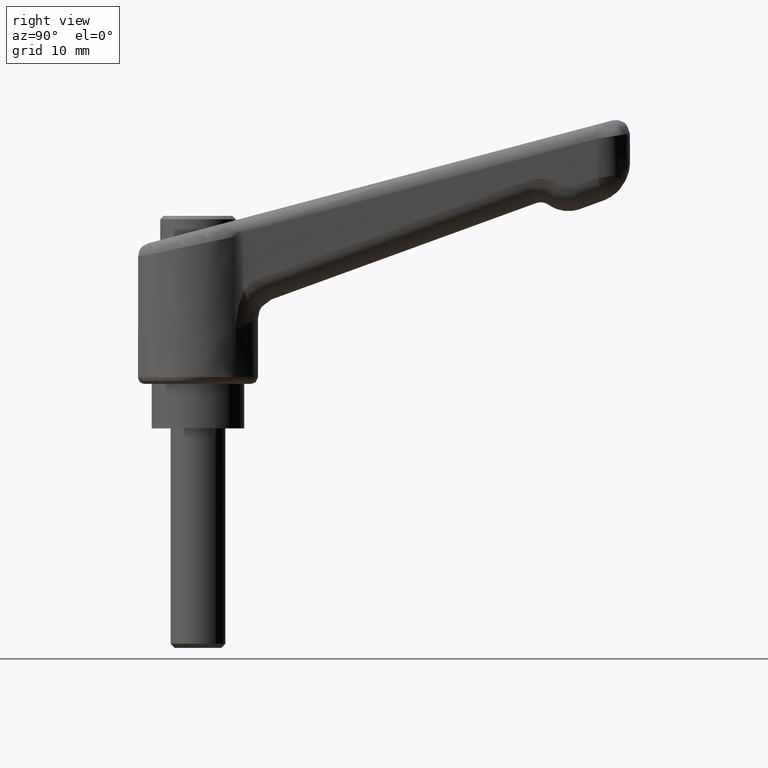
[diagram: clean part render]
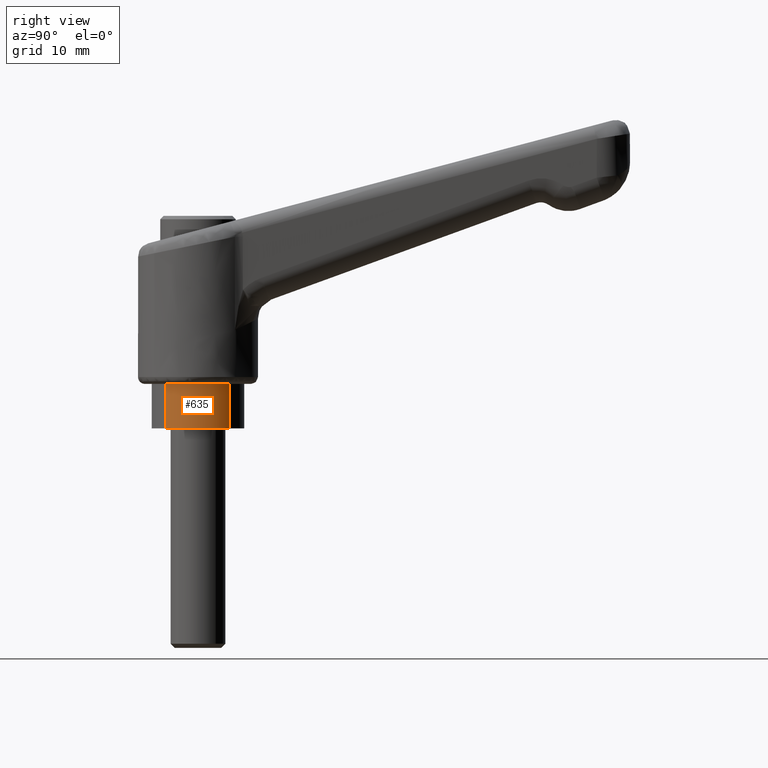
[diagram: same view with one face highlighted and labeled with its STEP entity id]
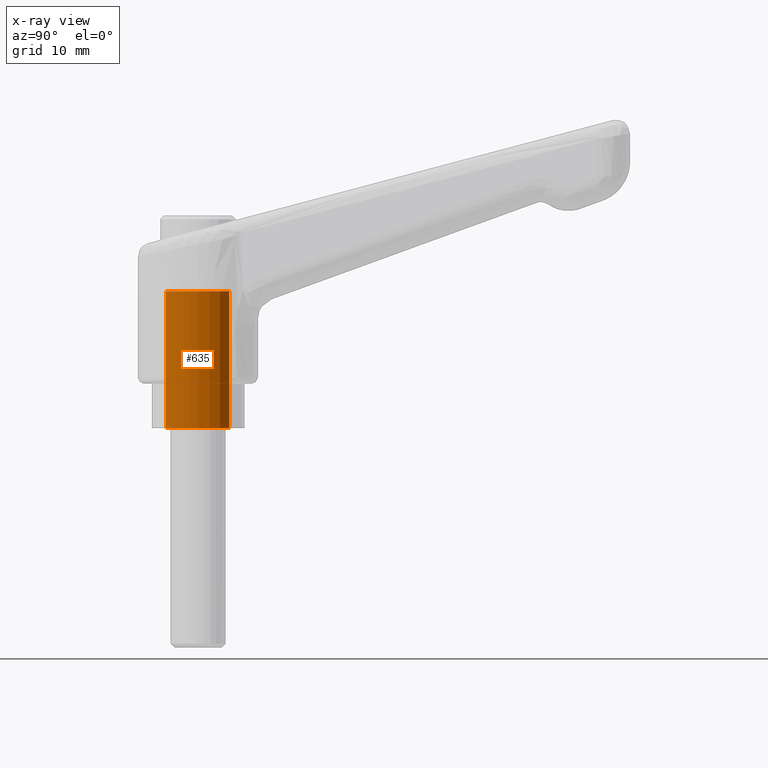
[diagram: x-ray of the same camera — body ghosted, the highlighted face saturated]
A machine part, right view. The second image highlights one B-rep face of the part: STEP entity #635.
The next image is the same camera in x-ray: the body ghosted, the highlighted face saturated — about 0% of this face is hidden behind the body in this view.
In plain terms, the highlighted face is a freeform B-spline surface patch.
Its self-contained STEP definition (entity closure, byte-faithful):
#439=CARTESIAN_POINT('',(-4.707665798015696,-4.837393944743987,5.739620E-013));
#440=VERTEX_POINT('',#439);
#452=CARTESIAN_POINT('',(-4.707665798241812,-4.837393944523935,20.000000000000011));
#453=VERTEX_POINT('',#452);
#454=CARTESIAN_POINT('',(-4.707665798241812,-4.837393944523935,20.000000000000011));
#455=CARTESIAN_POINT('',(-4.707665798015696,-4.837393944743987,5.739620E-013));
#456=QUASI_UNIFORM_CURVE('',1,(#454,#455),.UNSPECIFIED.,.F.,.U.);
#457=EDGE_CURVE('',#453,#440,#456,.T.);
#506=CARTESIAN_POINT('',(4.560234038149430,-4.976622154238742,20.0));
#507=VERTEX_POINT('',#506);
#519=CARTESIAN_POINT('',(4.560234038274445,-4.976622154124186,-6.178391E-014));
#520=VERTEX_POINT('',#519);
#521=CARTESIAN_POINT('',(4.560234038149430,-4.976622154238742,20.0));
#522=CARTESIAN_POINT('',(4.560234038274445,-4.976622154124186,-6.178391E-014));
#523=QUASI_UNIFORM_CURVE('',1,(#521,#522),.UNSPECIFIED.,.F.,.U.);
#524=EDGE_CURVE('',#507,#520,#523,.T.);
#573=CARTESIAN_POINT('',(4.560233901405705,-4.976622023468336,20.500000000000000));
#574=CARTESIAN_POINT('',(-0.139456225542581,-9.283094595012949,20.500000000000004));
#575=CARTESIAN_POINT('',(-4.707665948634954,-4.837394062515783,20.500000000000004));
#576=CARTESIAN_POINT('',(4.560233901405705,-4.976622023468336,-0.512500000000003));
#577=CARTESIAN_POINT('',(-0.139456225542581,-9.283094595012949,-0.512500000000003));
#578=CARTESIAN_POINT('',(-4.707665948634954,-4.837394062515783,-0.512500000000003));
#586=(BOUNDED_SURFACE()B_SPLINE_SURFACE(2,1,((#573,#576),(#574,#577),(#575,#578)),.UNSPECIFIED.,.F.,.F.,.U.)B_SPLINE_SURFACE_WITH_KNOTS((3,3),(2,2),(0.0,10.733469021284330),(0.0,21.012500000000010),.UNSPECIFIED.)GEOMETRIC_REPRESENTATION_ITEM()RATIONAL_B_SPLINE_SURFACE(((1.0,1.0),(0.718822509939086,0.718822509939086),(0.977505800795127,0.977505800795127)))REPRESENTATION_ITEM('')SURFACE());
#587=CARTESIAN_POINT('',(0.000000758071827,-6.749999999999957,0.0));
#588=VERTEX_POINT('',#587);
#589=CARTESIAN_POINT('',(-4.707665798015696,-4.837393944743987,5.739620E-013));
#590=CARTESIAN_POINT('',(-4.318843228138314,-5.215991313986373,5.265565E-013));
#591=CARTESIAN_POINT('',(-3.644829905377061,-5.729367225695235,4.443803E-013));
#592=CARTESIAN_POINT('',(-2.623584569195777,-6.240767044453831,3.198694E-013));
#593=CARTESIAN_POINT('',(-1.492277231839708,-6.630421784350741,1.819396E-013));
#594=CARTESIAN_POINT('',(-0.596969910836548,-6.750190591257438,7.278309E-014));
#595=CARTESIAN_POINT('',(0.000000758071827,-6.749999999999957,0.0));
#596=B_SPLINE_CURVE_WITH_KNOTS('',3,(#589,#590,#591,#592,#593,#594,#595),.UNSPECIFIED.,.F.,.U.,(4,1,1,1,4),(0.000000011847896,1.628046234879541,2.523471714766030,3.418884485562634,5.209735376483555),.UNSPECIFIED.);
#597=EDGE_CURVE('',#440,#588,#596,.T.);
#598=ORIENTED_EDGE('',*,*,#597,.T.);
#599=CARTESIAN_POINT('',(0.000000758071827,-6.749999999999957,0.0));
#600=CARTESIAN_POINT('',(0.365088083502410,-6.750025527022288,-4.946353E-015));
#601=CARTESIAN_POINT('',(1.121341709948365,-6.688503257762488,-1.519239E-014));
#602=CARTESIAN_POINT('',(2.110677312091385,-6.436746253865354,-2.859631E-014));
#603=CARTESIAN_POINT('',(3.316684929385950,-5.935312711118936,-4.493580E-014));
#604=CARTESIAN_POINT('',(4.079747890184653,-5.417328210106074,-5.527409E-014));
#605=CARTESIAN_POINT('',(4.560234038274445,-4.976622154124186,-6.178391E-014));
#606=B_SPLINE_CURVE_WITH_KNOTS('',3,(#599,#600,#601,#602,#603,#604,#605),.UNSPECIFIED.,.F.,.U.,(4,1,1,1,4),(0.000000012163206,1.095266845480939,2.268781754722448,3.051101933845821,5.006940638900541),.UNSPECIFIED.);
#607=EDGE_CURVE('',#588,#520,#606,.T.);
#608=ORIENTED_EDGE('',*,*,#607,.T.);
#609=ORIENTED_EDGE('',*,*,#524,.F.);
#610=CARTESIAN_POINT('',(0.000000758071827,-6.749999999999957,20.0));
#611=VERTEX_POINT('',#610);
#612=CARTESIAN_POINT('',(0.000000758071827,-6.749999999999957,20.0));
#613=CARTESIAN_POINT('',(0.365088704975985,-6.750024970737749,20.000000000000021));
#614=CARTESIAN_POINT('',(1.121338143672654,-6.688502830274045,19.999999999999940));
#615=CARTESIAN_POINT('',(2.212157294353629,-6.410937077149075,20.000000000000082));
#616=CARTESIAN_POINT('',(3.408129230345265,-5.880820458392331,19.999999999999918));
#617=CARTESIAN_POINT('',(4.156550311152420,-5.346695535336781,20.000000000000050));
#618=CARTESIAN_POINT('',(4.560234038149430,-4.976622154238742,20.0));
#619=B_SPLINE_CURVE_WITH_KNOTS('',3,(#612,#613,#614,#615,#616,#617,#618),.UNSPECIFIED.,.F.,.U.,(4,1,1,1,4),(0.000000012162969,1.095266845443681,2.268781754645506,3.364034526163711,5.006940638730976),.UNSPECIFIED.);
#620=EDGE_CURVE('',#611,#507,#619,.T.);
#621=ORIENTED_EDGE('',*,*,#620,.F.);
#622=CARTESIAN_POINT('',(-4.707665798241812,-4.837393944523935,20.000000000000011));
#623=CARTESIAN_POINT('',(-4.377133899237455,-5.159152978072789,19.999999999999989));
#624=CARTESIAN_POINT('',(-3.713917175035997,-5.683677756884521,20.000000000000021));
#625=CARTESIAN_POINT('',(-2.483646401563245,-6.328027383385881,20.000000000000011));
#626=CARTESIAN_POINT('',(-1.248181185738613,-6.679769822363393,19.999999999999989));
#627=CARTESIAN_POINT('',(-0.352733273733889,-6.749996904804436,20.000000000000011));
#628=CARTESIAN_POINT('',(0.000000758071827,-6.749999999999957,20.0));
#629=B_SPLINE_CURVE_WITH_KNOTS('',3,(#622,#623,#624,#625,#626,#627,#628),.UNSPECIFIED.,.F.,.U.,(4,1,1,1,4),(0.000000011847987,1.383836352574922,2.523471714918886,4.151510566206377,5.209735376799078),.UNSPECIFIED.);
#630=EDGE_CURVE('',#453,#611,#629,.T.);
#631=ORIENTED_EDGE('',*,*,#630,.F.);
#632=ORIENTED_EDGE('',*,*,#457,.T.);
#633=EDGE_LOOP('',(#598,#608,#609,#621,#631,#632));
#634=FACE_OUTER_BOUND('',#633,.T.);
#635=ADVANCED_FACE('',(#634),#586,.T.);